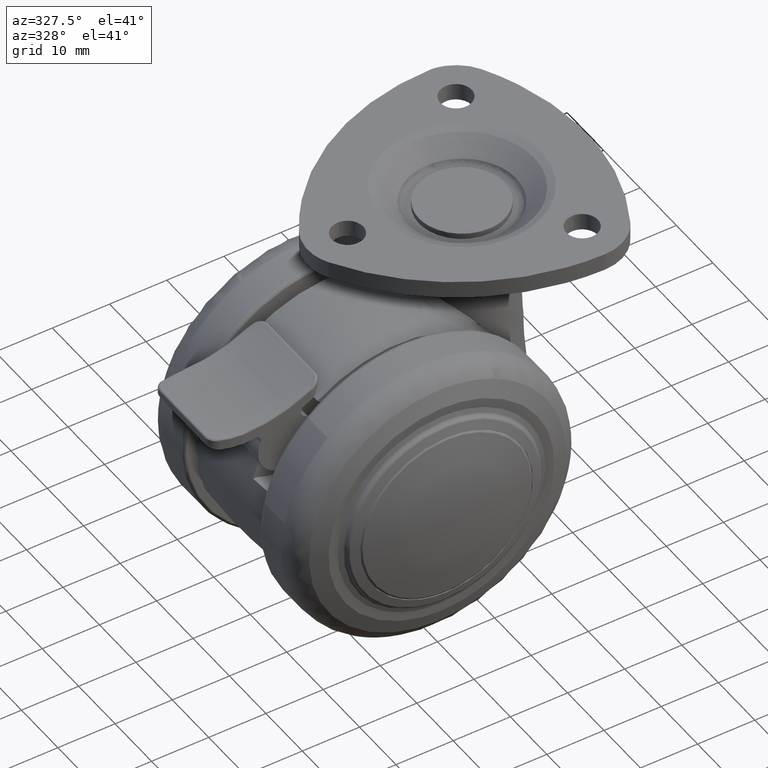
[diagram: clean part render]
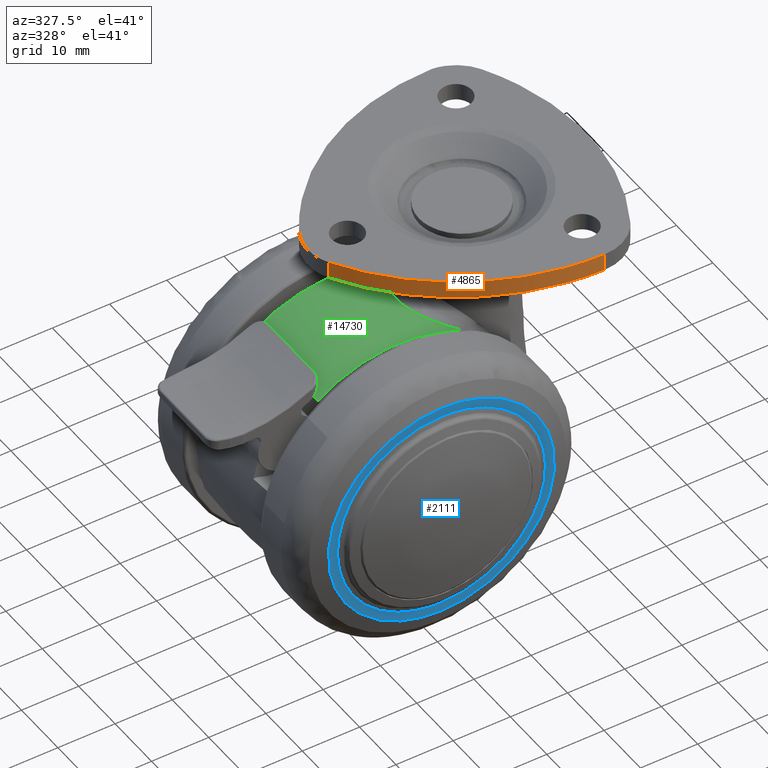
[diagram: same view with three faces highlighted in distinct colors, each labeled with its STEP entity id]
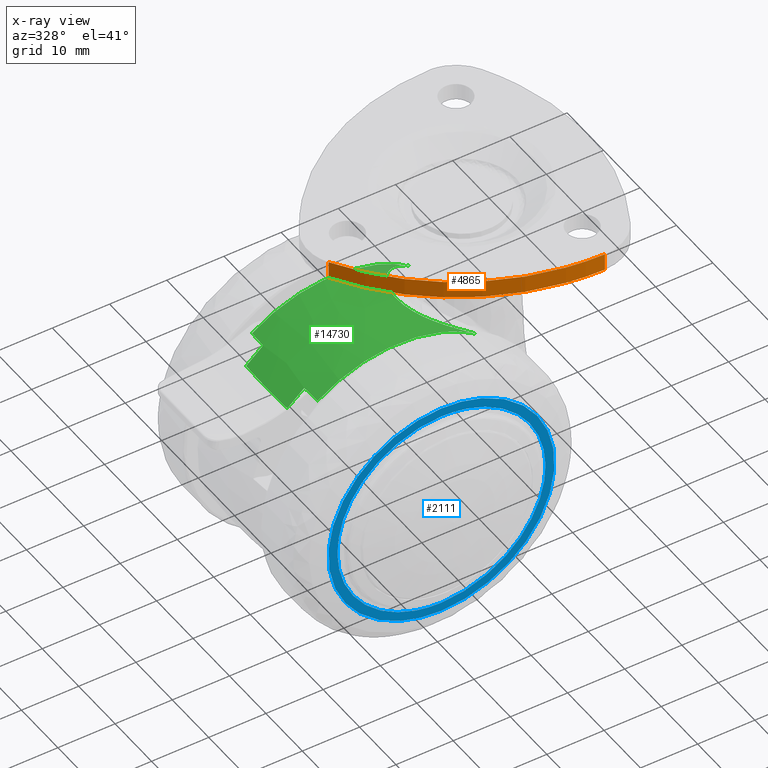
[diagram: x-ray of the same camera — body ghosted, the three highlighted faces saturated]
A machine part, auxiliary view with three faces highlighted in distinct colors.
The next image is the same camera in x-ray (body ghosted, the three faces saturated) — at least one of them is partly hidden behind the body in this view.
Their STEP definitions:

[orange] entity #4865 — the highlighted face is a freeform B-spline surface patch.
#4564=CARTESIAN_POINT('',(-8.887220776119202,-4.070158069546245,37.0));
#4565=VERTEX_POINT('',#4564);
#4579=CARTESIAN_POINT('',(-8.887220776119202,-4.070158069546245,40.0));
#4580=VERTEX_POINT('',#4579);
#4581=CARTESIAN_POINT('',(-8.887220776119202,-4.070158069546245,40.0));
#4582=CARTESIAN_POINT('',(-8.887220776119202,-4.070158069546245,37.0));
#4583=QUASI_UNIFORM_CURVE('',1,(#4581,#4582),.UNSPECIFIED.,.F.,.U.);
#4584=EDGE_CURVE('',#4580,#4565,#4583,.T.);
#4782=CARTESIAN_POINT('',(26.418748310005348,-24.454070550634601,37.0));
#4783=VERTEX_POINT('',#4782);
#4798=CARTESIAN_POINT('',(26.418748310005348,-24.454070550634601,40.0));
#4799=VERTEX_POINT('',#4798);
#4813=CARTESIAN_POINT('',(26.418748310005348,-24.454070550634601,40.0));
#4814=CARTESIAN_POINT('',(26.418748310005348,-24.454070550634601,37.0));
#4815=QUASI_UNIFORM_CURVE('',1,(#4813,#4814),.UNSPECIFIED.,.F.,.U.);
#4816=EDGE_CURVE('',#4799,#4783,#4815,.T.);
#4821=CARTESIAN_POINT('',(-9.774193588910507,-2.491652450088459,40.075000000000010));
#4822=CARTESIAN_POINT('',(-9.774193588910507,-2.491652450088459,36.923124999999992));
#4823=CARTESIAN_POINT('',(2.432905049268928,-25.370887962710118,40.075000000000010));
#4824=CARTESIAN_POINT('',(2.432905049268928,-25.370887962710118,36.923124999999992));
#4825=CARTESIAN_POINT('',(28.347865540875851,-24.428817093453151,40.075000000000010));
#4826=CARTESIAN_POINT('',(28.347865540875851,-24.428817093453151,36.923124999999992));
#4834=(BOUNDED_SURFACE()B_SPLINE_SURFACE(1,2,((#4821,#4823,#4825),(#4822,#4824,#4826)),.UNSPECIFIED.,.F.,.F.,.U.)B_SPLINE_SURFACE_WITH_KNOTS((2,2),(3,3),(0.0,3.151875000000024),(0.0,47.599734035962037),.UNSPECIFIED.)GEOMETRIC_REPRESENTATION_ITEM()RATIONAL_B_SPLINE_SURFACE(((1.0,0.848048096156426,1.0),(1.0,0.848048096156426,1.0)))REPRESENTATION_ITEM('')SURFACE());
#4835=CARTESIAN_POINT('',(-8.887220776119202,-4.070158069546259,37.0));
#4836=CARTESIAN_POINT('',(3.018654533397902,-24.216398656747568,37.0));
#4837=CARTESIAN_POINT('',(26.418748310005341,-24.454070550634640,37.0));
#4845=(BOUNDED_CURVE()B_SPLINE_CURVE(2,(#4835,#4836,#4837),.UNSPECIFIED.,.F.,.U.)CURVE()GEOMETRIC_REPRESENTATION_ITEM()QUASI_UNIFORM_CURVE()RATIONAL_B_SPLINE_CURVE((1.0,0.871058895698466,1.0))REPRESENTATION_ITEM(''));
#4846=EDGE_CURVE('',#4565,#4783,#4845,.T.);
#4847=ORIENTED_EDGE('',*,*,#4846,.T.);
#4848=ORIENTED_EDGE('',*,*,#4816,.F.);
#4849=CARTESIAN_POINT('',(-8.887220776119202,-4.070158069546259,40.0));
#4850=CARTESIAN_POINT('',(3.018654533397902,-24.216398656747568,39.999999999999993));
#4851=CARTESIAN_POINT('',(26.418748310005341,-24.454070550634640,40.0));
#4859=(BOUNDED_CURVE()B_SPLINE_CURVE(2,(#4849,#4850,#4851),.UNSPECIFIED.,.F.,.U.)CURVE()GEOMETRIC_REPRESENTATION_ITEM()QUASI_UNIFORM_CURVE()RATIONAL_B_SPLINE_CURVE((1.0,0.871058895698466,1.0))REPRESENTATION_ITEM(''));
#4860=EDGE_CURVE('',#4580,#4799,#4859,.T.);
#4861=ORIENTED_EDGE('',*,*,#4860,.F.);
#4862=ORIENTED_EDGE('',*,*,#4584,.T.);
#4863=EDGE_LOOP('',(#4847,#4848,#4861,#4862));
#4864=FACE_OUTER_BOUND('',#4863,.T.);
#4865=ADVANCED_FACE('',(#4864),#4834,.T.);

[blue] entity #2111 — the highlighted face is a freeform B-spline surface patch.
#2023=CARTESIAN_POINT('',(0.0,-21.081931999999899,-18.191763477110101));
#2024=VERTEX_POINT('',#2023);
#2025=CARTESIAN_POINT('',(0.0,-21.081931999999899,18.191763477110101));
#2026=VERTEX_POINT('',#2025);
#2027=CARTESIAN_POINT('',(0.0,-21.081931999999899,-18.191763477110101));
#2028=CARTESIAN_POINT('',(18.191763477110104,-21.081931999999895,-18.191763477110104));
#2029=CARTESIAN_POINT('',(18.191763477110101,-21.081931999999899,1.789254E-015));
#2030=CARTESIAN_POINT('',(18.191763477110104,-21.081931999999895,18.191763477110104));
#2031=CARTESIAN_POINT('',(0.0,-21.081931999999899,18.191763477110101));
#2039=(BOUNDED_CURVE()B_SPLINE_CURVE(2,(#2027,#2028,#2029,#2030,#2031),.UNSPECIFIED.,.F.,.U.)B_SPLINE_CURVE_WITH_KNOTS((3,2,3),(0.0,0.250000000000000,0.500000000000000),.UNSPECIFIED.)CURVE()GEOMETRIC_REPRESENTATION_ITEM()RATIONAL_B_SPLINE_CURVE((1.0,0.707106781186547,1.0,0.707106781186547,1.0))REPRESENTATION_ITEM(''));
#2040=EDGE_CURVE('',#2024,#2026,#2039,.T.);
#2042=CARTESIAN_POINT('',(0.0,-21.081931999999899,18.191763477110101));
#2043=CARTESIAN_POINT('',(-18.191763477110104,-21.081931999999895,18.191763477110104));
#2044=CARTESIAN_POINT('',(-18.191763477110101,-21.081931999999899,1.789254E-015));
#2045=CARTESIAN_POINT('',(-18.191763477110104,-21.081931999999895,-18.191763477110104));
#2046=CARTESIAN_POINT('',(0.0,-21.081931999999899,-18.191763477110101));
#2054=(BOUNDED_CURVE()B_SPLINE_CURVE(2,(#2042,#2043,#2044,#2045,#2046),.UNSPECIFIED.,.F.,.U.)B_SPLINE_CURVE_WITH_KNOTS((3,2,3),(0.500000000000000,0.750000000000000,1.0),.UNSPECIFIED.)CURVE()GEOMETRIC_REPRESENTATION_ITEM()RATIONAL_B_SPLINE_CURVE((1.0,0.707106781186547,1.0,0.707106781186547,1.0))REPRESENTATION_ITEM(''));
#2055=EDGE_CURVE('',#2026,#2024,#2054,.T.);
#2066=CARTESIAN_POINT('',(-21.740498557456359,-21.081931999999899,-21.740498557456370));
#2067=CARTESIAN_POINT('',(-21.740498557456359,-21.081931999999899,21.740499264339562));
#2068=CARTESIAN_POINT('',(21.740499264339530,-21.081931999999899,-21.740498557456370));
#2069=CARTESIAN_POINT('',(21.740499264339530,-21.081931999999899,21.740499264339562));
#2070=B_SPLINE_SURFACE_WITH_KNOTS('',1,1,((#2066,#2068),(#2067,#2069)),.UNSPECIFIED.,.F.,.F.,.U.,(2,2),(2,2),(0.0,43.480997821795931),(0.0,43.480997821795889),.UNSPECIFIED.);
#2071=CARTESIAN_POINT('',(0.0,-21.081931999999899,-19.765886228730452));
#2072=VERTEX_POINT('',#2071);
#2073=CARTESIAN_POINT('',(0.0,-21.081931999999899,19.765886228730459));
#2074=VERTEX_POINT('',#2073);
#2075=CARTESIAN_POINT('',(0.0,-21.081931999999899,-19.765886228730452));
#2076=CARTESIAN_POINT('',(19.765886228730455,-21.081931999999892,-19.765886228730455));
#2077=CARTESIAN_POINT('',(19.765886228730452,-21.081931999999899,1.789254E-015));
#2078=CARTESIAN_POINT('',(19.765886228730455,-21.081931999999892,19.765886228730455));
#2079=CARTESIAN_POINT('',(0.0,-21.081931999999899,19.765886228730459));
#2087=(BOUNDED_CURVE()B_SPLINE_CURVE(2,(#2075,#2076,#2077,#2078,#2079),.UNSPECIFIED.,.F.,.U.)B_SPLINE_CURVE_WITH_KNOTS((3,2,3),(0.0,0.250000000000000,0.500000000000000),.UNSPECIFIED.)CURVE()GEOMETRIC_REPRESENTATION_ITEM()RATIONAL_B_SPLINE_CURVE((1.0,0.707106781186548,1.0,0.707106781186548,1.0))REPRESENTATION_ITEM(''));
#2088=EDGE_CURVE('',#2072,#2074,#2087,.T.);
#2089=ORIENTED_EDGE('',*,*,#2088,.T.);
#2090=CARTESIAN_POINT('',(0.0,-21.081931999999899,19.765886228730459));
#2091=CARTESIAN_POINT('',(-19.765886228730455,-21.081931999999892,19.765886228730455));
#2092=CARTESIAN_POINT('',(-19.765886228730452,-21.081931999999899,1.789254E-015));
#2093=CARTESIAN_POINT('',(-19.765886228730455,-21.081931999999892,-19.765886228730455));
#2094=CARTESIAN_POINT('',(0.0,-21.081931999999899,-19.765886228730452));
#2102=(BOUNDED_CURVE()B_SPLINE_CURVE(2,(#2090,#2091,#2092,#2093,#2094),.UNSPECIFIED.,.F.,.U.)B_SPLINE_CURVE_WITH_KNOTS((3,2,3),(0.500000000000000,0.750000000000000,1.0),.UNSPECIFIED.)CURVE()GEOMETRIC_REPRESENTATION_ITEM()RATIONAL_B_SPLINE_CURVE((1.0,0.707106781186548,1.0,0.707106781186548,1.0))REPRESENTATION_ITEM(''));
#2103=EDGE_CURVE('',#2074,#2072,#2102,.T.);
#2104=ORIENTED_EDGE('',*,*,#2103,.T.);
#2105=EDGE_LOOP('',(#2089,#2104));
#2106=FACE_OUTER_BOUND('',#2105,.T.);
#2107=ORIENTED_EDGE('',*,*,#2040,.F.);
#2108=ORIENTED_EDGE('',*,*,#2055,.F.);
#2109=EDGE_LOOP('',(#2107,#2108));
#2110=FACE_BOUND('',#2109,.T.);
#2111=ADVANCED_FACE('',(#2106,#2110),#2070,.F.);

[green] entity #14730 — the highlighted face is a freeform B-spline surface patch.
#12731=CARTESIAN_POINT('',(-17.132445547932900,5.650000000000000,16.442498696311350));
#12732=VERTEX_POINT('',#12731);
#12764=CARTESIAN_POINT('',(-17.132445547932900,-5.650000000000000,16.442498696311350));
#12765=VERTEX_POINT('',#12764);
#12781=CARTESIAN_POINT('',(-17.132445547932939,-5.650000000000000,16.442498696311350));
#12782=CARTESIAN_POINT('',(-17.183907193448881,-4.708816020118264,16.465798041260499));
#12783=CARTESIAN_POINT('',(-17.223165734686990,-3.767489910103124,16.482514528282191));
#12784=CARTESIAN_POINT('',(-17.275705039373971,-1.884546156734824,16.504595476321740));
#12785=CARTESIAN_POINT('',(-17.302262113542788,-0.001310857998545,16.515331606416911));
#12786=CARTESIAN_POINT('',(-17.275748482611078,1.882512822371419,16.504613444889301));
#12787=CARTESIAN_POINT('',(-17.223203039648318,3.766628597500297,16.482530495706570));
#12788=CARTESIAN_POINT('',(-17.183908069242840,4.708800002689288,16.465798437777661));
#12789=CARTESIAN_POINT('',(-17.132445547932932,5.650000000000001,16.442498696311350));
#12790=B_SPLINE_CURVE_WITH_KNOTS('',3,(#12781,#12782,#12783,#12784,#12785,#12786,#12787,#12788,#12789),.UNSPECIFIED.,.F.,.U.,(4,2,1,2,4),(0.0,0.250000000000000,0.500000000000000,0.750000000000000,1.0),.UNSPECIFIED.);
#12791=EDGE_CURVE('',#12765,#12732,#12790,.T.);
#13210=CARTESIAN_POINT('',(13.588231695146179,9.0,19.173156694149551));
#13211=VERTEX_POINT('',#13210);
#13326=CARTESIAN_POINT('',(6.219993507327210,3.692938383415840,23.011809311680100));
#13327=VERTEX_POINT('',#13326);
#13364=CARTESIAN_POINT('',(6.219993507327210,3.692938383415840,23.011809311680100));
#13365=CARTESIAN_POINT('',(6.278624935757117,3.823225182682476,22.990682837458898));
#13366=CARTESIAN_POINT('',(6.395223366603417,4.082322338615454,22.948669299507088));
#13367=CARTESIAN_POINT('',(6.590205561343025,4.457431674735847,22.876623073130759));
#13368=CARTESIAN_POINT('',(6.798374180556531,4.819331666933396,22.798166385493751));
#13369=CARTESIAN_POINT('',(7.021063800761381,5.167271448499734,22.712394392818130));
#13370=CARTESIAN_POINT('',(7.257711787003527,5.501444362847999,22.619183165476720));
#13371=CARTESIAN_POINT('',(7.508235546352675,5.821795078575351,22.518161493786270));
#13372=CARTESIAN_POINT('',(7.772401600434760,6.128336119822137,22.408984034620790));
#13373=CARTESIAN_POINT('',(8.049992775707091,6.421063210355301,22.291259247503220));
#13374=CARTESIAN_POINT('',(8.340760593323369,6.699980830973473,22.164570080387321));
#13375=CARTESIAN_POINT('',(8.644443772550023,6.965084862768402,22.028466740243850));
#13376=CARTESIAN_POINT('',(8.960735351472680,7.216407088599175,21.882479139953450));
#13377=CARTESIAN_POINT('',(9.289390294511284,7.453851827909706,21.726078283403840));
#13378=CARTESIAN_POINT('',(9.748256556189610,7.755737851419884,21.500633564368641));
#13379=CARTESIAN_POINT('',(10.353411805418480,8.094328146188836,21.188679494721189));
#13380=CARTESIAN_POINT('',(11.117555037187261,8.429225841587490,20.767323054136309));
#13381=CARTESIAN_POINT('',(11.916697299187200,8.693052936205529,20.293093224124028));
#13382=CARTESIAN_POINT('',(12.748490270358939,8.891612364255032,19.764135803318130));
#13383=CARTESIAN_POINT('',(13.304198173082510,8.963339045782341,19.373049033491672));
#13384=CARTESIAN_POINT('',(13.588231695146179,9.0,19.173156694149551));
#13385=B_SPLINE_CURVE_WITH_KNOTS('',3,(#13364,#13365,#13366,#13367,#13368,#13369,#13370,#13371,#13372,#13373,#13374,#13375,#13376,#13377,#13378,#13379,#13380,#13381,#13382,#13383,#13384),.UNSPECIFIED.,.F.,.U.,(4,1,1,1,1,1,1,1,1,1,1,1,1,1,1,1,1,1,4),(0.0,0.041725974252428,0.082979099326952,0.123852435229087,0.164441336862084,0.204842872980680,0.245155188974324,0.285476833527948,0.325906072281352,0.366540212856249,0.407474964855436,0.448803855765919,0.490617719491048,0.533004269058387,0.620319770104614,0.709952416947242,0.802660437895247,0.899135767923390,1.000000000000000),.UNSPECIFIED.);
#13386=EDGE_CURVE('',#13327,#13211,#13385,.T.);
#13449=CARTESIAN_POINT('',(6.215744114371440,-3.673296328291225,23.013707355271450));
#13450=VERTEX_POINT('',#13449);
#13467=CARTESIAN_POINT('',(6.215744114371440,-3.673296328291225,23.013707355271450));
#13468=CARTESIAN_POINT('',(6.163512965499828,-3.547861069766016,23.032328378675739));
#13469=CARTESIAN_POINT('',(6.059016707753850,-3.296908996368151,23.069582532627649));
#13470=CARTESIAN_POINT('',(5.924626600521748,-2.910068240834645,23.116671524506732));
#13471=CARTESIAN_POINT('',(5.806900146376258,-2.515932255172424,23.157573913241372));
#13472=CARTESIAN_POINT('',(5.707517703319883,-2.113728091255474,23.191828877556851));
#13473=CARTESIAN_POINT('',(5.626131953513815,-1.703679143854897,23.219752072738629));
#13474=CARTESIAN_POINT('',(5.562917634358988,-1.285739684406603,23.241393995349259));
#13475=CARTESIAN_POINT('',(5.517881432313001,-0.859940039510437,23.256821384425141));
#13476=CARTESIAN_POINT('',(5.491057285743191,-0.426277927585193,23.266038503537949));
#13477=CARTESIAN_POINT('',(5.480212286510919,0.128163947591951,23.269779037305959));
#13478=CARTESIAN_POINT('',(5.504832870357054,0.793902638100909,23.261193745784109));
#13479=CARTESIAN_POINT('',(5.592902396780717,1.558507462851361,23.230983660470439));
#13480=CARTESIAN_POINT('',(5.741158364576782,2.297087660404783,23.180041069420010));
#13481=CARTESIAN_POINT('',(5.944090083965008,3.012045779198560,23.109900967692528));
#13482=CARTESIAN_POINT('',(6.128170718133329,3.466332108033121,23.044454972413149));
#13483=CARTESIAN_POINT('',(6.219993507327210,3.692938383415840,23.011809311680100));
#13484=B_SPLINE_CURVE_WITH_KNOTS('',3,(#13467,#13468,#13469,#13470,#13471,#13472,#13473,#13474,#13475,#13476,#13477,#13478,#13479,#13480,#13481,#13482,#13483),.UNSPECIFIED.,.F.,.U.,(4,1,1,1,1,1,1,1,1,1,1,1,1,1,4),(0.0,0.054225332973137,0.108485922541177,0.162915807822060,0.217648352330687,0.272815234545730,0.328545497201007,0.384964685092542,0.442194093982434,0.500350144917826,0.604217026484721,0.705386180330456,0.804568682316268,0.902515222031797,0.999999836281785),.UNSPECIFIED.);
#13485=EDGE_CURVE('',#13450,#13327,#13484,.T.);
#13568=CARTESIAN_POINT('',(13.626917232103301,-8.999999980331229,19.145929981141801));
#13569=VERTEX_POINT('',#13568);
#13609=CARTESIAN_POINT('',(13.626917232103301,-8.999999980331229,19.145929981141801));
#13610=CARTESIAN_POINT('',(13.483174728646519,-8.983397786929727,19.248660035378521));
#13611=CARTESIAN_POINT('',(13.198955482302789,-8.950570593978789,19.451786166410411));
#13612=CARTESIAN_POINT('',(12.772271449658581,-8.878491098380051,19.741343123070909));
#13613=CARTESIAN_POINT('',(12.352578842174690,-8.790215433512142,20.015908931818149));
#13614=CARTESIAN_POINT('',(11.940044040031029,-8.684164614004835,20.275327102081292));
#13615=CARTESIAN_POINT('',(11.535323291601969,-8.560736172977114,20.520443052476079));
#13616=CARTESIAN_POINT('',(11.138898500460840,-8.419813897040656,20.751821981759669));
#13617=CARTESIAN_POINT('',(10.751245994035269,-8.261415052035199,20.970081213076501));
#13618=CARTESIAN_POINT('',(10.372820780613059,-8.085520438070979,21.175793904813890));
#13619=CARTESIAN_POINT('',(10.003972097124720,-7.892126656182612,21.369540100201370));
#13620=CARTESIAN_POINT('',(9.283111071716551,-7.468211968437656,21.735828872534981));
#13621=CARTESIAN_POINT('',(8.258356511719414,-6.688737164876597,22.212309735777460));
#13622=CARTESIAN_POINT('',(7.347427646362947,-5.642800715653374,22.587327032557670));
#13623=CARTESIAN_POINT('',(6.792770815356787,-4.800988921491501,22.801501859457691));
#13624=CARTESIAN_POINT('',(6.479829437251701,-4.251264304528282,22.918468718444970));
#13625=CARTESIAN_POINT('',(6.303845780252374,-3.866112577891753,22.981934735463849));
#13626=CARTESIAN_POINT('',(6.215744114371440,-3.673296328291225,23.013707355271450));
#13627=B_SPLINE_CURVE_WITH_KNOTS('',3,(#13609,#13610,#13611,#13612,#13613,#13614,#13615,#13616,#13617,#13618,#13619,#13620,#13621,#13622,#13623,#13624,#13625,#13626),.UNSPECIFIED.,.F.,.U.,(4,1,1,1,1,1,1,1,1,1,1,1,1,1,1,4),(0.0,0.051005348936090,0.100851880866773,0.149610454805750,0.197356226776257,0.244168706523859,0.290131750760002,0.335333480319933,0.379866109869693,0.423825681291731,0.467311695704187,0.642269694070688,0.815353082418038,0.876968644372549,0.938407534135915,1.0),.UNSPECIFIED.);
#13628=EDGE_CURVE('',#13569,#13450,#13627,.T.);
#14627=CARTESIAN_POINT('',(-18.105102404502968,9.894888072911941,14.848265687434962));
#14628=CARTESIAN_POINT('',(-18.865890451620874,0.000001526398200,15.472199361105984));
#14629=CARTESIAN_POINT('',(-18.105102636925142,-9.894885050005094,14.848265878047874));
#14630=CARTESIAN_POINT('',(-11.079333940254795,9.894888072911936,23.415074781050734));
#14631=CARTESIAN_POINT('',(-11.544894677965793,0.000001526398200,24.398991282476601));
#14632=CARTESIAN_POINT('',(-11.079334082484472,-9.894885050005092,23.415075081639060));
#14633=CARTESIAN_POINT('',(0.0,9.894888072911936,23.415074781050723));
#14634=CARTESIAN_POINT('',(0.0,0.000001526398198,24.398991282476583));
#14635=CARTESIAN_POINT('',(0.0,-9.894885050005092,23.415075081639053));
#14636=CARTESIAN_POINT('',(8.362800808145646,9.894888072911936,23.415074781050713));
#14637=CARTESIAN_POINT('',(8.714211076539533,0.000001526398199,24.398991282476572));
#14638=CARTESIAN_POINT('',(8.362800915502143,-9.894885050005097,23.415075081639070));
#14639=CARTESIAN_POINT('',(14.833455232584836,9.894888072911940,18.117238555174445));
#14640=CARTESIAN_POINT('',(15.456766561417885,0.000001526398200,18.878536571148789));
#14641=CARTESIAN_POINT('',(14.833455423007607,-9.894885050005096,18.117238787752413));
#14649=(BOUNDED_SURFACE()B_SPLINE_SURFACE(2,2,((#14627,#14630,#14633,#14636,#14639),(#14628,#14631,#14634,#14637,#14640),(#14629,#14632,#14635,#14638,#14641)),.UNSPECIFIED.,.F.,.F.,.U.)B_SPLINE_SURFACE_WITH_KNOTS((3,3),(3,2,3),(0.000001761057973,19.838453292846680),(0.000294988381863,22.107702362712011,39.493167877197273),.UNSPECIFIED.)GEOMETRIC_REPRESENTATION_ITEM()RATIONAL_B_SPLINE_SURFACE(((0.755208263774165,0.737994309465869,0.882636646812012,0.768888601856465,0.755238834704839),(0.751502093239249,0.734372616092164,0.878305123852895,0.765115295316369,0.751532514143648),(0.755208262636340,0.737994308353979,0.882636645482197,0.768888600698027,0.755238833566967)))REPRESENTATION_ITEM('')SURFACE());
#14650=ORIENTED_EDGE('',*,*,#12791,.F.);
#14651=CARTESIAN_POINT('',(-14.167866658842920,-5.650000000000000,19.056442694488751));
#14652=VERTEX_POINT('',#14651);
#14653=CARTESIAN_POINT('',(-14.167866658842909,-5.650000000000000,19.056442694488730));
#14654=CARTESIAN_POINT('',(-15.759303628506331,-5.650000000000000,17.873259288035584));
#14655=CARTESIAN_POINT('',(-17.132445547932889,-5.650000000000000,16.442498696311340));
#14663=(BOUNDED_CURVE()B_SPLINE_CURVE(2,(#14653,#14654,#14655),.UNSPECIFIED.,.F.,.U.)CURVE()GEOMETRIC_REPRESENTATION_ITEM()QUASI_UNIFORM_CURVE()RATIONAL_B_SPLINE_CURVE((1.0,0.996531027909305,1.0))REPRESENTATION_ITEM(''));
#14664=EDGE_CURVE('',#14652,#12765,#14663,.T.);
#14665=ORIENTED_EDGE('',*,*,#14664,.F.);
#14666=CARTESIAN_POINT('',(-13.969870840949859,-9.0,18.896896224157150));
#14667=VERTEX_POINT('',#14666);
#14668=CARTESIAN_POINT('',(-13.969870840949900,-9.000000000000004,18.896896224157171));
#14669=CARTESIAN_POINT('',(-14.049614202948160,-7.884783900568010,18.963271601913469));
#14670=CARTESIAN_POINT('',(-14.116109206966870,-6.768128623127567,19.016075828337090));
#14671=CARTESIAN_POINT('',(-14.167866658842939,-5.650000000000000,19.056442694488741));
#14672=QUASI_UNIFORM_CURVE('',3,(#14668,#14669,#14670,#14671),.UNSPECIFIED.,.F.,.U.);
#14673=EDGE_CURVE('',#14667,#14652,#14672,.T.);
#14674=ORIENTED_EDGE('',*,*,#14673,.F.);
#14675=CARTESIAN_POINT('',(-13.969870840949859,-9.0,18.896896224157150));
#14676=CARTESIAN_POINT('',(-0.261743147103723,-8.999999990165614,29.030915623515064));
#14677=CARTESIAN_POINT('',(13.626917232103301,-8.999999980331229,19.145929981141801));
#14685=(BOUNDED_CURVE()B_SPLINE_CURVE(2,(#14675,#14676,#14677),.UNSPECIFIED.,.F.,.U.)CURVE()GEOMETRIC_REPRESENTATION_ITEM()QUASI_UNIFORM_CURVE()RATIONAL_B_SPLINE_CURVE((1.0,0.809451247870484,1.0))REPRESENTATION_ITEM(''));
#14686=EDGE_CURVE('',#14667,#13569,#14685,.T.);
#14687=ORIENTED_EDGE('',*,*,#14686,.T.);
#14688=ORIENTED_EDGE('',*,*,#13628,.T.);
#14689=ORIENTED_EDGE('',*,*,#13485,.T.);
#14690=ORIENTED_EDGE('',*,*,#13386,.T.);
#14691=CARTESIAN_POINT('',(-13.969870840949859,9.0,18.896896224157150));
#14692=VERTEX_POINT('',#14691);
#14693=CARTESIAN_POINT('',(-13.969870840949881,9.0,18.896896224157160));
#14694=CARTESIAN_POINT('',(-0.290809115536020,9.0,29.009388945852034));
#14695=CARTESIAN_POINT('',(13.588231695146179,9.0,19.173156694149551));
#14703=(BOUNDED_CURVE()B_SPLINE_CURVE(2,(#14693,#14694,#14695),.UNSPECIFIED.,.F.,.U.)CURVE()GEOMETRIC_REPRESENTATION_ITEM()QUASI_UNIFORM_CURVE()RATIONAL_B_SPLINE_CURVE((1.0,0.810041840881026,1.0))REPRESENTATION_ITEM(''));
#14704=EDGE_CURVE('',#14692,#13211,#14703,.T.);
#14705=ORIENTED_EDGE('',*,*,#14704,.F.);
#14706=CARTESIAN_POINT('',(-14.167866658842920,5.650000000000000,19.056442694488751));
#14707=VERTEX_POINT('',#14706);
#14708=CARTESIAN_POINT('',(-14.167866658842939,5.650000000000000,19.056442694488741));
#14709=CARTESIAN_POINT('',(-14.116109211554130,6.768128524027872,19.016075831914801));
#14710=CARTESIAN_POINT('',(-14.049614209980600,7.884783802218856,18.963271607767009));
#14711=CARTESIAN_POINT('',(-13.969870840949890,9.000000000000002,18.896896224157160));
#14712=QUASI_UNIFORM_CURVE('',3,(#14708,#14709,#14710,#14711),.UNSPECIFIED.,.F.,.U.);
#14713=EDGE_CURVE('',#14707,#14692,#14712,.T.);
#14714=ORIENTED_EDGE('',*,*,#14713,.F.);
#14715=CARTESIAN_POINT('',(-17.132445547932889,5.650000000000000,16.442498696311340));
#14716=CARTESIAN_POINT('',(-15.759303628506331,5.650000000000000,17.873259288035584));
#14717=CARTESIAN_POINT('',(-14.167866658842900,5.650000000000000,19.056442694488741));
#14725=(BOUNDED_CURVE()B_SPLINE_CURVE(2,(#14715,#14716,#14717),.UNSPECIFIED.,.F.,.U.)CURVE()GEOMETRIC_REPRESENTATION_ITEM()QUASI_UNIFORM_CURVE()RATIONAL_B_SPLINE_CURVE((1.0,0.996531027909305,1.0))REPRESENTATION_ITEM(''));
#14726=EDGE_CURVE('',#12732,#14707,#14725,.T.);
#14727=ORIENTED_EDGE('',*,*,#14726,.F.);
#14728=EDGE_LOOP('',(#14650,#14665,#14674,#14687,#14688,#14689,#14690,#14705,#14714,#14727));
#14729=FACE_OUTER_BOUND('',#14728,.T.);
#14730=ADVANCED_FACE('',(#14729),#14649,.T.);